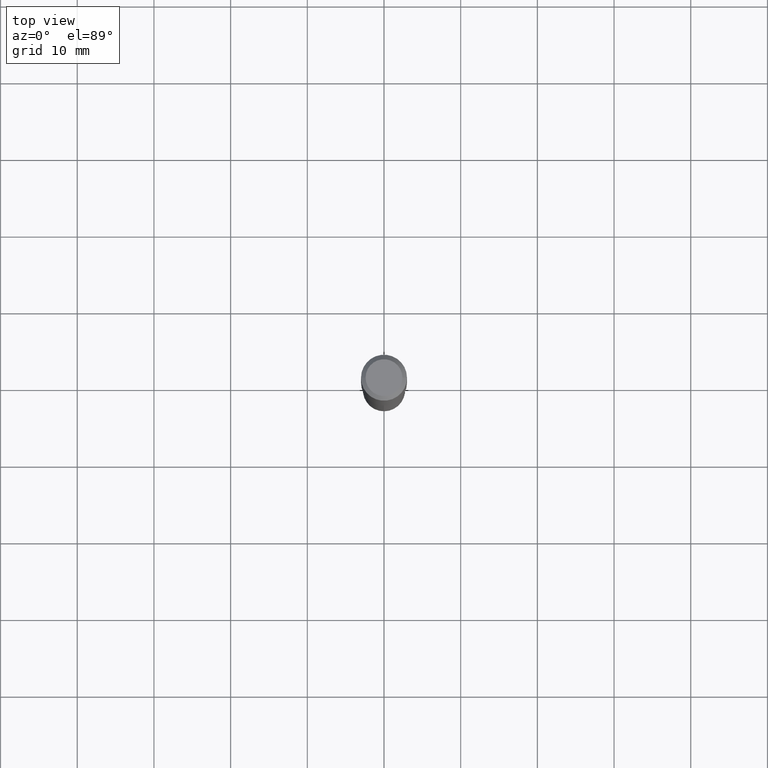
[diagram: clean part render]
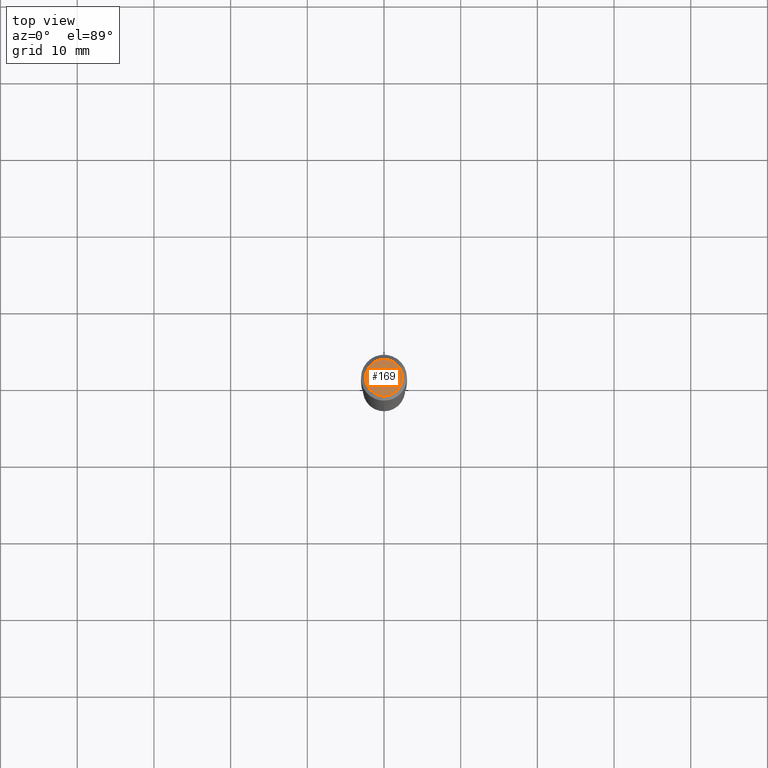
[diagram: same view with one face highlighted and labeled with its STEP entity id]
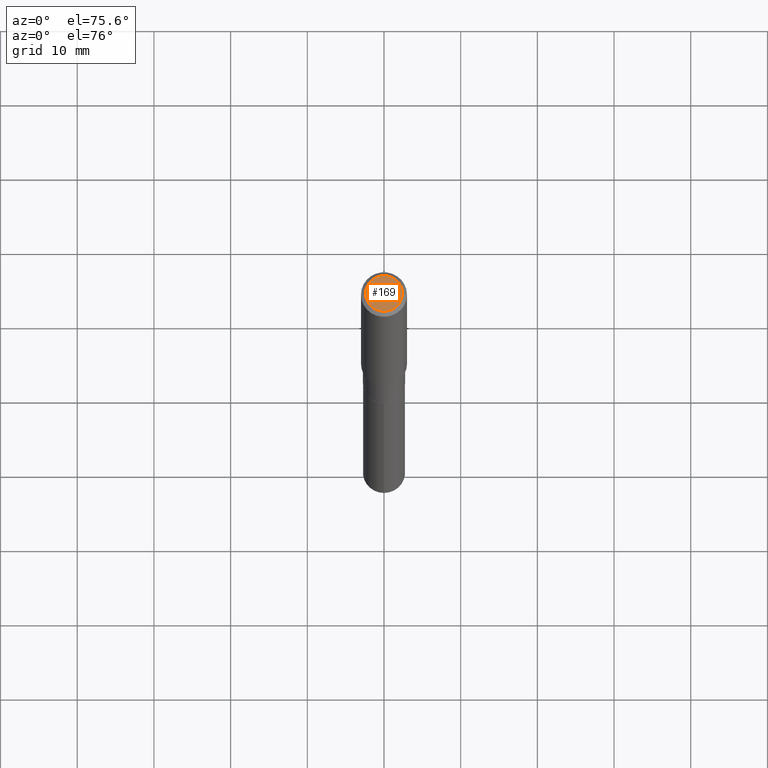
[diagram: same view with one face highlighted and labeled with its STEP entity id]
A machine part, top view. The second image highlights one B-rep face of the part: STEP entity #169.
A second angle (auxiliary view) of the same face is appended — the face is thin or edge-on in the first view.
In plain terms, the highlighted planar face has unit normal (0, -0, -1).
Its self-contained STEP definition (entity closure, byte-faithful):
#7 = DIRECTION ( 'NONE',  ( 2.438088387897960049E-29, -3.491481338843145188E-15, -1.000000000000000000 ) ) ;
#14 = CARTESIAN_POINT ( 'NONE',  ( 0.09447999999999998066, -7.704367267948738690E-16, -1.928573779296752193E-17 ) ) ;
#33 = DIRECTION ( 'NONE',  ( 1.000000000000000000, -6.982962677686267499E-15, 4.875432709231658792E-29 ) ) ;
#49 = CARTESIAN_POINT ( 'NONE',  ( 4.716267017698007905E-46, -6.733579360998555036E-32, -1.928573779297252010E-17 ) ) ;
#63 = CARTESIAN_POINT ( 'NONE',  ( 4.716267017698007905E-46, -6.733579360998555036E-32, -1.928573779297252010E-17 ) ) ;
#83 = AXIS2_PLACEMENT_3D ( 'NONE', #342, #7, #416 ) ;
#84 = CIRCLE ( 'NONE', #199, 0.09447999999999998066 ) ;
#123 = ORIENTED_EDGE ( 'NONE', *, *, #152, .T. ) ;
#151 = PLANE ( 'NONE',  #83 ) ;
#152 = EDGE_CURVE ( 'NONE', #250, #284, #317, .T. ) ;
#169 = ADVANCED_FACE ( 'NONE', ( #269 ), #151, .F. ) ;
#199 = AXIS2_PLACEMENT_3D ( 'NONE', #63, #326, #33 ) ;
#250 = VERTEX_POINT ( 'NONE', #274 ) ;
#269 = FACE_OUTER_BOUND ( 'NONE', #372, .T. ) ;
#270 = DIRECTION ( 'NONE',  ( -2.445468806185136597E-29, 3.491481338843145583E-15, 1.000000000000000000 ) ) ;
#274 = CARTESIAN_POINT ( 'NONE',  ( -0.09447999999999998066, 7.009847083995354710E-16, -1.928573779297727792E-17 ) ) ;
#284 = VERTEX_POINT ( 'NONE', #14 ) ;
#317 = CIRCLE ( 'NONE', #445, 0.09447999999999998066 ) ;
#326 = DIRECTION ( 'NONE',  ( -2.445468806185136597E-29, 3.491481338843145583E-15, 1.000000000000000000 ) ) ;
#342 = CARTESIAN_POINT ( 'NONE',  ( 2.358133508849003952E-46, -3.366789680499277518E-32, -9.642868896486260050E-18 ) ) ;
#372 = EDGE_LOOP ( 'NONE', ( #123, #440 ) ) ;
#378 = DIRECTION ( 'NONE',  ( 1.000000000000000000, -6.982962677686267499E-15, 4.875432709231658792E-29 ) ) ;
#416 = DIRECTION ( 'NONE',  ( -1.000000000000000000, 6.982962677686265922E-15, -4.876176775795935793E-29 ) ) ;
#440 = ORIENTED_EDGE ( 'NONE', *, *, #460, .T. ) ;
#445 = AXIS2_PLACEMENT_3D ( 'NONE', #49, #270, #378 ) ;
#460 = EDGE_CURVE ( 'NONE', #284, #250, #84, .T. ) ;